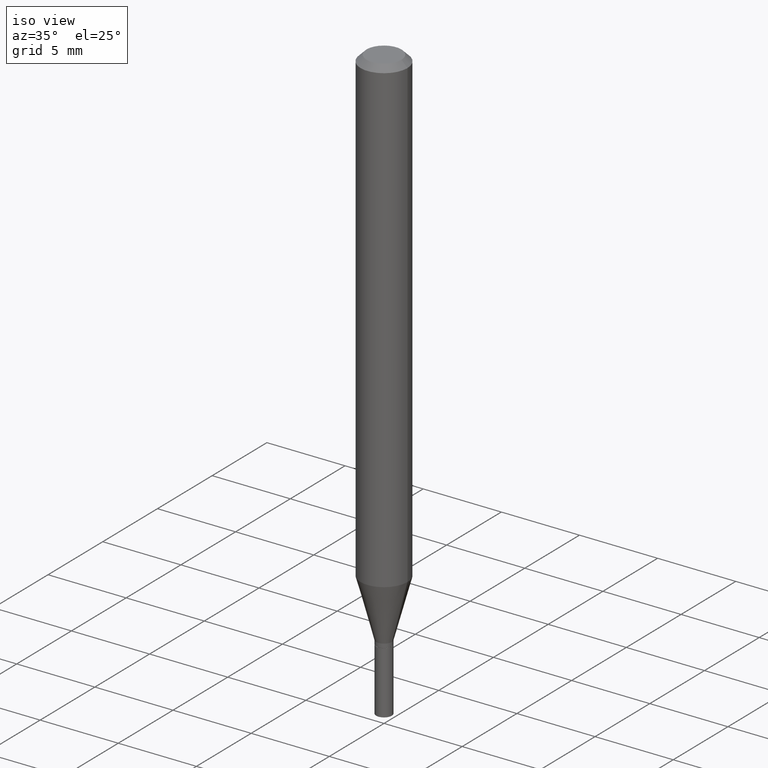
[diagram: clean part render]
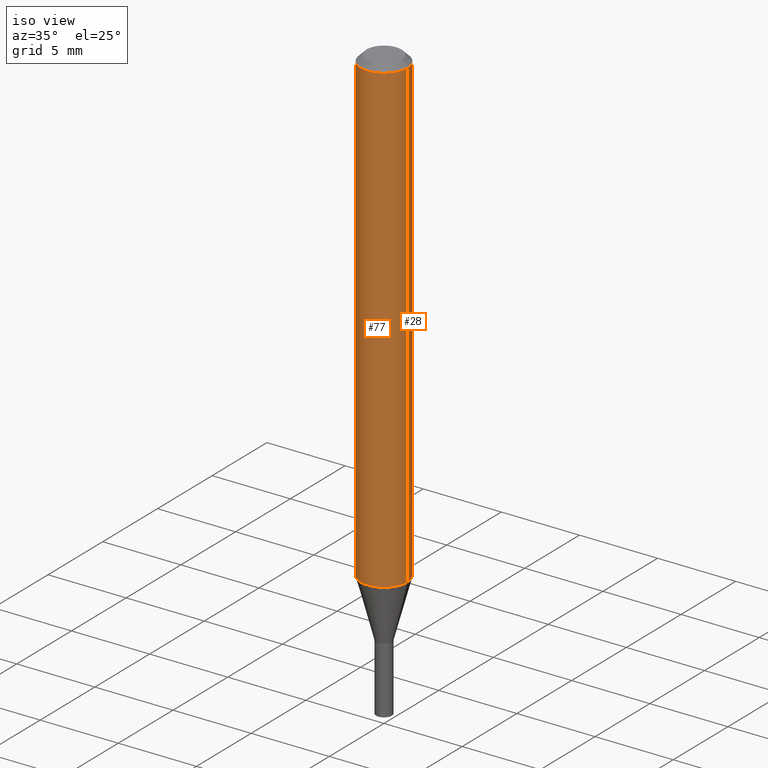
[diagram: same view with one multi-face feature highlighted, each face labeled with its STEP entity id]
A machine part, iso view. The highlighted faces form ONE feature: a constant-radius fillet chain: 2 tangent blend faces with common blend radius 1.4999 mm. The faces share edges in the B-rep.
Their STEP definitions:
[1] entity #28 (Cylinder):
#1 = CARTESIAN_POINT ( 'NONE',  ( 0.05905000000000001914, -4.647161662000214077E-16, -0.01499999999999999944 ) ) ;
#2 = CARTESIAN_POINT ( 'NONE',  ( -0.05905000000000001914, 4.195754854663392958E-16, -2.904631170795522943E-30 ) ) ;
#9 = CARTESIAN_POINT ( 'NONE',  ( -0.05905000000000001914, -3.718331978600737710E-15, -1.185143800722164409 ) ) ;
#23 = EDGE_CURVE ( 'NONE', #50, #375, #205, .T. ) ;
#28 = ADVANCED_FACE ( 'NONE', ( #322 ), #281, .T. ) ;
#37 = EDGE_CURVE ( 'NONE', #234, #50, #214, .T. ) ;
#50 = VERTEX_POINT ( 'NONE', #1 ) ;
#57 = VECTOR ( 'NONE', #399, 39.37007874015748143 ) ;
#84 = DIRECTION ( 'NONE',  ( -2.445468806185136597E-29, 3.491481338843145583E-15, 1.000000000000000000 ) ) ;
#104 = CARTESIAN_POINT ( 'NONE',  ( 0.000000000000000000, 0.000000000000000000, 0.000000000000000000 ) ) ;
#106 = DIRECTION ( 'NONE',  ( 1.000000000000000000, -6.982962677686266711E-15, 0.000000000000000000 ) ) ;
#108 = AXIS2_PLACEMENT_3D ( 'NONE', #354, #385, #106 ) ;
#110 = DIRECTION ( 'NONE',  ( -2.445468806185136877E-29, 3.491481338843145188E-15, 1.000000000000000000 ) ) ;
#116 = CARTESIAN_POINT ( 'NONE',  ( 0.05905000000000001914, -4.550251410184451334E-15, -1.185143800722164409 ) ) ;
#120 = EDGE_LOOP ( 'NONE', ( #338, #420, #159, #383 ) ) ;
#121 = AXIS2_PLACEMENT_3D ( 'NONE', #104, #317, #182 ) ;
#122 = AXIS2_PLACEMENT_3D ( 'NONE', #163, #84, #237 ) ;
#159 = ORIENTED_EDGE ( 'NONE', *, *, #23, .F. ) ;
#163 = CARTESIAN_POINT ( 'NONE',  ( 2.898232195509746702E-29, -4.137907464067076414E-15, -1.185143800722164409 ) ) ;
#165 = CARTESIAN_POINT ( 'NONE',  ( -0.05905000000000001914, -1.675564356608522648E-15, -0.01499999999999999944 ) ) ;
#182 = DIRECTION ( 'NONE',  ( 1.000000000000000000, -6.982962677686266711E-15, 4.876176775795935793E-29 ) ) ;
#205 = CIRCLE ( 'NONE', #108, 0.05905000000000001914 ) ;
#214 = LINE ( 'NONE', #320, #261 ) ;
#224 = LINE ( 'NONE', #2, #57 ) ;
#227 = CIRCLE ( 'NONE', #122, 0.05905000000000001914 ) ;
#234 = VERTEX_POINT ( 'NONE', #116 ) ;
#237 = DIRECTION ( 'NONE',  ( 1.000000000000000000, -6.982962677686270655E-15, 0.000000000000000000 ) ) ;
#261 = VECTOR ( 'NONE', #110, 39.37007874015748143 ) ;
#281 = CYLINDRICAL_SURFACE ( 'NONE', #121, 0.05905000000000001914 ) ;
#286 = EDGE_CURVE ( 'NONE', #301, #375, #224, .T. ) ;
#301 = VERTEX_POINT ( 'NONE', #9 ) ;
#317 = DIRECTION ( 'NONE',  ( -2.445468806185136597E-29, 3.491481338843145583E-15, 1.000000000000000000 ) ) ;
#320 = CARTESIAN_POINT ( 'NONE',  ( 0.05905000000000001914, -4.123439461173741806E-16, 2.879382386107500921E-30 ) ) ;
#322 = FACE_OUTER_BOUND ( 'NONE', #120, .T. ) ;
#338 = ORIENTED_EDGE ( 'NONE', *, *, #378, .T. ) ;
#354 = CARTESIAN_POINT ( 'NONE',  ( 3.668203209277705088E-31, -5.237222008264718399E-17, -0.01499999999999999944 ) ) ;
#375 = VERTEX_POINT ( 'NONE', #165 ) ;
#378 = EDGE_CURVE ( 'NONE', #234, #301, #227, .T. ) ;
#383 = ORIENTED_EDGE ( 'NONE', *, *, #37, .F. ) ;
#385 = DIRECTION ( 'NONE',  ( -2.445468806185136597E-29, 3.491481338843145583E-15, 1.000000000000000000 ) ) ;
#399 = DIRECTION ( 'NONE',  ( -2.445468806185136877E-29, 3.491481338843145188E-15, 1.000000000000000000 ) ) ;
#420 = ORIENTED_EDGE ( 'NONE', *, *, #286, .T. ) ;
[2] entity #77 (Cylinder):
#1 = CARTESIAN_POINT ( 'NONE',  ( 0.05905000000000001914, -4.647161662000214077E-16, -0.01499999999999999944 ) ) ;
#2 = CARTESIAN_POINT ( 'NONE',  ( -0.05905000000000001914, 4.195754854663392958E-16, -2.904631170795522943E-30 ) ) ;
#9 = CARTESIAN_POINT ( 'NONE',  ( -0.05905000000000001914, -3.718331978600737710E-15, -1.185143800722164409 ) ) ;
#31 = FACE_OUTER_BOUND ( 'NONE', #269, .T. ) ;
#37 = EDGE_CURVE ( 'NONE', #234, #50, #214, .T. ) ;
#50 = VERTEX_POINT ( 'NONE', #1 ) ;
#57 = VECTOR ( 'NONE', #399, 39.37007874015748143 ) ;
#77 = ADVANCED_FACE ( 'NONE', ( #31 ), #217, .T. ) ;
#86 = CARTESIAN_POINT ( 'NONE',  ( 2.898232195509746702E-29, -4.137907464067076414E-15, -1.185143800722164409 ) ) ;
#110 = DIRECTION ( 'NONE',  ( -2.445468806185136877E-29, 3.491481338843145188E-15, 1.000000000000000000 ) ) ;
#116 = CARTESIAN_POINT ( 'NONE',  ( 0.05905000000000001914, -4.550251410184451334E-15, -1.185143800722164409 ) ) ;
#161 = AXIS2_PLACEMENT_3D ( 'NONE', #86, #376, #194 ) ;
#165 = CARTESIAN_POINT ( 'NONE',  ( -0.05905000000000001914, -1.675564356608522648E-15, -0.01499999999999999944 ) ) ;
#168 = ORIENTED_EDGE ( 'NONE', *, *, #461, .T. ) ;
#194 = DIRECTION ( 'NONE',  ( 1.000000000000000000, -6.982962677686270655E-15, 0.000000000000000000 ) ) ;
#195 = ORIENTED_EDGE ( 'NONE', *, *, #37, .T. ) ;
#214 = LINE ( 'NONE', #320, #261 ) ;
#217 = CYLINDRICAL_SURFACE ( 'NONE', #371, 0.05905000000000001914 ) ;
#224 = LINE ( 'NONE', #2, #57 ) ;
#225 = ORIENTED_EDGE ( 'NONE', *, *, #392, .F. ) ;
#228 = DIRECTION ( 'NONE',  ( 1.000000000000000000, -6.982962677686266711E-15, 0.000000000000000000 ) ) ;
#234 = VERTEX_POINT ( 'NONE', #116 ) ;
#236 = CIRCLE ( 'NONE', #161, 0.05905000000000001914 ) ;
#243 = AXIS2_PLACEMENT_3D ( 'NONE', #309, #303, #228 ) ;
#261 = VECTOR ( 'NONE', #110, 39.37007874015748143 ) ;
#269 = EDGE_LOOP ( 'NONE', ( #285, #168, #195, #225 ) ) ;
#285 = ORIENTED_EDGE ( 'NONE', *, *, #286, .F. ) ;
#286 = EDGE_CURVE ( 'NONE', #301, #375, #224, .T. ) ;
#301 = VERTEX_POINT ( 'NONE', #9 ) ;
#303 = DIRECTION ( 'NONE',  ( -2.445468806185136597E-29, 3.491481338843145583E-15, 1.000000000000000000 ) ) ;
#309 = CARTESIAN_POINT ( 'NONE',  ( 3.668203209277705088E-31, -5.237222008264718399E-17, -0.01499999999999999944 ) ) ;
#320 = CARTESIAN_POINT ( 'NONE',  ( 0.05905000000000001914, -4.123439461173741806E-16, 2.879382386107500921E-30 ) ) ;
#371 = AXIS2_PLACEMENT_3D ( 'NONE', #459, #394, #463 ) ;
#375 = VERTEX_POINT ( 'NONE', #165 ) ;
#376 = DIRECTION ( 'NONE',  ( -2.445468806185136597E-29, 3.491481338843145583E-15, 1.000000000000000000 ) ) ;
#386 = CIRCLE ( 'NONE', #243, 0.05905000000000001914 ) ;
#392 = EDGE_CURVE ( 'NONE', #375, #50, #386, .T. ) ;
#394 = DIRECTION ( 'NONE',  ( -2.445468806185136597E-29, 3.491481338843145583E-15, 1.000000000000000000 ) ) ;
#399 = DIRECTION ( 'NONE',  ( -2.445468806185136877E-29, 3.491481338843145188E-15, 1.000000000000000000 ) ) ;
#459 = CARTESIAN_POINT ( 'NONE',  ( 0.000000000000000000, 0.000000000000000000, 0.000000000000000000 ) ) ;
#461 = EDGE_CURVE ( 'NONE', #301, #234, #236, .T. ) ;
#463 = DIRECTION ( 'NONE',  ( 1.000000000000000000, -6.982962677686266711E-15, 4.876176775795935793E-29 ) ) ;